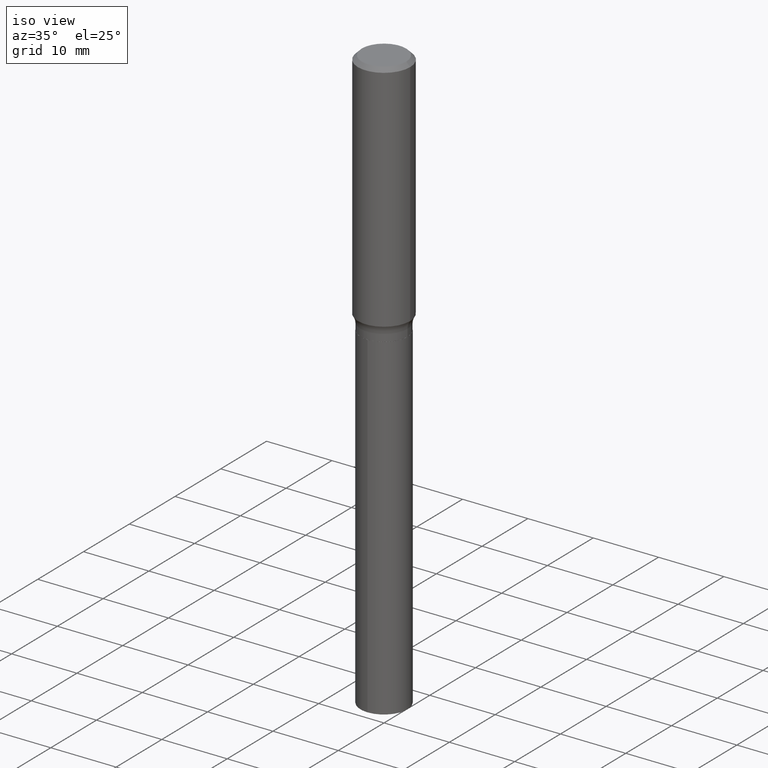
[diagram: clean part render]
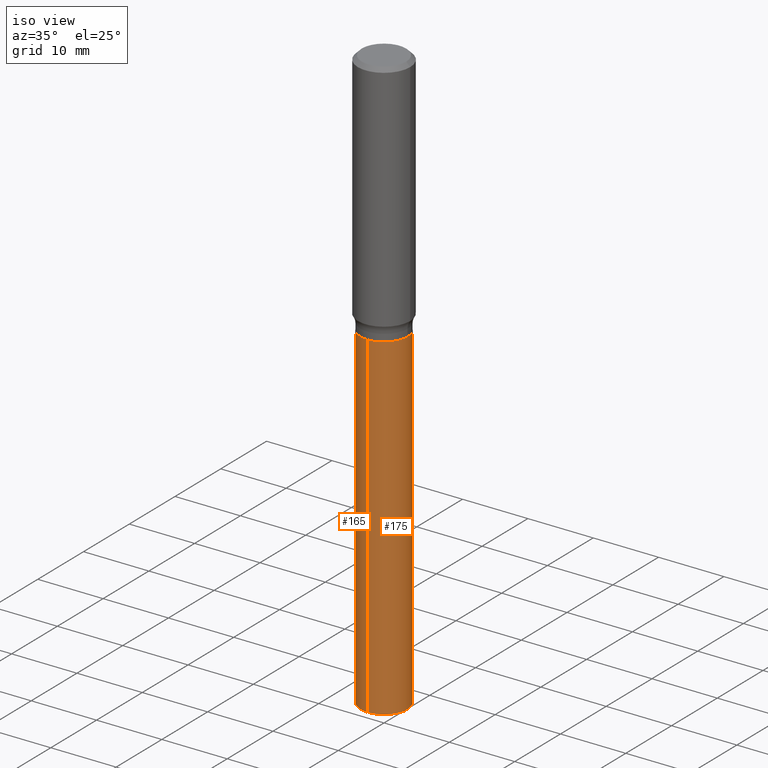
[diagram: same view with one multi-face feature highlighted, each face labeled with its STEP entity id]
A machine part, iso view. The highlighted faces form ONE feature: a constant-radius fillet chain: 2 tangent blend faces with common blend radius 3.6004 mm. The faces share edges in the B-rep.
Their STEP definitions:
[1] entity #175 (Cylinder):
#19 = FACE_OUTER_BOUND ( 'NONE', #196, .T. ) ;
#52 = CARTESIAN_POINT ( 'NONE',  ( -9.898349595619915374E-16, -0.1417500000000052052, -1.496399999999999730 ) ) ;
#53 = ORIENTED_EDGE ( 'NONE', *, *, #243, .T. ) ;
#64 = CARTESIAN_POINT ( 'NONE',  ( 1.007194327939978407E-15, 0.1417499999999947691, -1.496400000000000841 ) ) ;
#74 = ORIENTED_EDGE ( 'NONE', *, *, #119, .F. ) ;
#79 = CARTESIAN_POINT ( 'NONE',  ( 1.007194327940028105E-15, 0.1417499999999947413, -1.496400000000000841 ) ) ;
#93 = VECTOR ( 'NONE', #320, 39.37007874015748143 ) ;
#98 = CARTESIAN_POINT ( 'NONE',  ( 8.622013889450241900E-29, -1.231008543107536459E-14, -3.525729282487866989 ) ) ;
#118 = CARTESIAN_POINT ( 'NONE',  ( 3.659399521575438742E-29, -5.224652675444883351E-15, -1.496400000000000174 ) ) ;
#119 = EDGE_CURVE ( 'NONE', #444, #371, #357, .T. ) ;
#135 = ORIENTED_EDGE ( 'NONE', *, *, #440, .F. ) ;
#159 = DIRECTION ( 'NONE',  ( -2.445445601509706497E-29, 3.491514569259089389E-15, 1.000000000000000000 ) ) ;
#175 = ADVANCED_FACE ( 'NONE', ( #19 ), #232, .T. ) ;
#181 = CIRCLE ( 'NONE', #315, 0.1417499999999999871 ) ;
#196 = EDGE_LOOP ( 'NONE', ( #53, #310, #135, #74 ) ) ;
#202 = EDGE_CURVE ( 'NONE', #373, #413, #410, .T. ) ;
#232 = CYLINDRICAL_SURFACE ( 'NONE', #316, 0.1417499999999999871 ) ;
#238 = DIRECTION ( 'NONE',  ( -6.982962677686265133E-15, -1.000000000000000000, 3.854459250319948630E-15 ) ) ;
#243 = EDGE_CURVE ( 'NONE', #444, #373, #181, .T. ) ;
#245 = DIRECTION ( 'NONE',  ( -2.445445601509706497E-29, 3.491514569259089389E-15, 1.000000000000000000 ) ) ;
#271 = DIRECTION ( 'NONE',  ( -2.445445601509706497E-29, 3.491514569259089389E-15, 1.000000000000000000 ) ) ;
#291 = CARTESIAN_POINT ( 'NONE',  ( 1.007194327940028105E-15, 0.1417499999999876914, -3.525729282487867877 ) ) ;
#310 = ORIENTED_EDGE ( 'NONE', *, *, #202, .T. ) ;
#315 = AXIS2_PLACEMENT_3D ( 'NONE', #98, #245, #412 ) ;
#316 = AXIS2_PLACEMENT_3D ( 'NONE', #360, #435, #238 ) ;
#320 = DIRECTION ( 'NONE',  ( -2.445445601509706497E-29, 3.491514569259089389E-15, 1.000000000000000000 ) ) ;
#329 = CARTESIAN_POINT ( 'NONE',  ( -9.898349595619418392E-16, -0.1417500000000123106, -3.525729282487866545 ) ) ;
#357 = LINE ( 'NONE', #52, #437 ) ;
#360 = CARTESIAN_POINT ( 'NONE',  ( 3.659399521575438742E-29, -5.224652675444883351E-15, -1.496400000000000174 ) ) ;
#371 = VERTEX_POINT ( 'NONE', #464 ) ;
#373 = VERTEX_POINT ( 'NONE', #291 ) ;
#375 = CIRCLE ( 'NONE', #416, 0.1417499999999999871 ) ;
#410 = LINE ( 'NONE', #64, #93 ) ;
#412 = DIRECTION ( 'NONE',  ( -6.982962677686265133E-15, -1.000000000000000000, 3.854459250319948630E-15 ) ) ;
#413 = VERTEX_POINT ( 'NONE', #79 ) ;
#416 = AXIS2_PLACEMENT_3D ( 'NONE', #118, #271, #454 ) ;
#435 = DIRECTION ( 'NONE',  ( -2.445445601509706497E-29, 3.491514569259089389E-15, 1.000000000000000000 ) ) ;
#437 = VECTOR ( 'NONE', #159, 39.37007874015748143 ) ;
#440 = EDGE_CURVE ( 'NONE', #371, #413, #375, .T. ) ;
#444 = VERTEX_POINT ( 'NONE', #329 ) ;
#454 = DIRECTION ( 'NONE',  ( -6.982962677686265133E-15, -1.000000000000000000, 3.854459250319948630E-15 ) ) ;
#464 = CARTESIAN_POINT ( 'NONE',  ( -9.898349595619915374E-16, -0.1417500000000052052, -1.496399999999999730 ) ) ;
[2] entity #165 (Cylinder):
#52 = CARTESIAN_POINT ( 'NONE',  ( -9.898349595619915374E-16, -0.1417500000000052052, -1.496399999999999730 ) ) ;
#64 = CARTESIAN_POINT ( 'NONE',  ( 1.007194327939978407E-15, 0.1417499999999947691, -1.496400000000000841 ) ) ;
#77 = DIRECTION ( 'NONE',  ( -6.982962677686265133E-15, -1.000000000000000000, 3.854459250319948630E-15 ) ) ;
#79 = CARTESIAN_POINT ( 'NONE',  ( 1.007194327940028105E-15, 0.1417499999999947413, -1.496400000000000841 ) ) ;
#93 = VECTOR ( 'NONE', #320, 39.37007874015748143 ) ;
#95 = DIRECTION ( 'NONE',  ( -6.982962677686265133E-15, -1.000000000000000000, 3.854459250319948630E-15 ) ) ;
#111 = CARTESIAN_POINT ( 'NONE',  ( 3.659399521575438742E-29, -5.224652675444883351E-15, -1.496400000000000174 ) ) ;
#119 = EDGE_CURVE ( 'NONE', #444, #371, #357, .T. ) ;
#125 = FACE_OUTER_BOUND ( 'NONE', #337, .T. ) ;
#127 = DIRECTION ( 'NONE',  ( -2.445445601509706497E-29, 3.491514569259089389E-15, 1.000000000000000000 ) ) ;
#153 = CARTESIAN_POINT ( 'NONE',  ( 3.659399521575438742E-29, -5.224652675444883351E-15, -1.496400000000000174 ) ) ;
#159 = DIRECTION ( 'NONE',  ( -2.445445601509706497E-29, 3.491514569259089389E-15, 1.000000000000000000 ) ) ;
#161 = CYLINDRICAL_SURFACE ( 'NONE', #166, 0.1417499999999999871 ) ;
#165 = ADVANCED_FACE ( 'NONE', ( #125 ), #161, .T. ) ;
#166 = AXIS2_PLACEMENT_3D ( 'NONE', #153, #397, #194 ) ;
#177 = ORIENTED_EDGE ( 'NONE', *, *, #250, .T. ) ;
#194 = DIRECTION ( 'NONE',  ( -6.982962677686265133E-15, -1.000000000000000000, 3.854459250319948630E-15 ) ) ;
#202 = EDGE_CURVE ( 'NONE', #373, #413, #410, .T. ) ;
#206 = ORIENTED_EDGE ( 'NONE', *, *, #119, .T. ) ;
#227 = AXIS2_PLACEMENT_3D ( 'NONE', #372, #127, #95 ) ;
#233 = ORIENTED_EDGE ( 'NONE', *, *, #202, .F. ) ;
#250 = EDGE_CURVE ( 'NONE', #373, #444, #452, .T. ) ;
#270 = ORIENTED_EDGE ( 'NONE', *, *, #477, .F. ) ;
#291 = CARTESIAN_POINT ( 'NONE',  ( 1.007194327940028105E-15, 0.1417499999999876914, -3.525729282487867877 ) ) ;
#293 = CIRCLE ( 'NONE', #465, 0.1417499999999999871 ) ;
#320 = DIRECTION ( 'NONE',  ( -2.445445601509706497E-29, 3.491514569259089389E-15, 1.000000000000000000 ) ) ;
#329 = CARTESIAN_POINT ( 'NONE',  ( -9.898349595619418392E-16, -0.1417500000000123106, -3.525729282487866545 ) ) ;
#337 = EDGE_LOOP ( 'NONE', ( #233, #177, #206, #270 ) ) ;
#357 = LINE ( 'NONE', #52, #437 ) ;
#371 = VERTEX_POINT ( 'NONE', #464 ) ;
#372 = CARTESIAN_POINT ( 'NONE',  ( 8.622013889450241900E-29, -1.231008543107536459E-14, -3.525729282487866989 ) ) ;
#373 = VERTEX_POINT ( 'NONE', #291 ) ;
#397 = DIRECTION ( 'NONE',  ( -2.445445601509706497E-29, 3.491514569259089389E-15, 1.000000000000000000 ) ) ;
#410 = LINE ( 'NONE', #64, #93 ) ;
#413 = VERTEX_POINT ( 'NONE', #79 ) ;
#419 = DIRECTION ( 'NONE',  ( -2.445445601509706497E-29, 3.491514569259089389E-15, 1.000000000000000000 ) ) ;
#437 = VECTOR ( 'NONE', #159, 39.37007874015748143 ) ;
#444 = VERTEX_POINT ( 'NONE', #329 ) ;
#452 = CIRCLE ( 'NONE', #227, 0.1417499999999999871 ) ;
#464 = CARTESIAN_POINT ( 'NONE',  ( -9.898349595619915374E-16, -0.1417500000000052052, -1.496399999999999730 ) ) ;
#465 = AXIS2_PLACEMENT_3D ( 'NONE', #111, #419, #77 ) ;
#477 = EDGE_CURVE ( 'NONE', #413, #371, #293, .T. ) ;